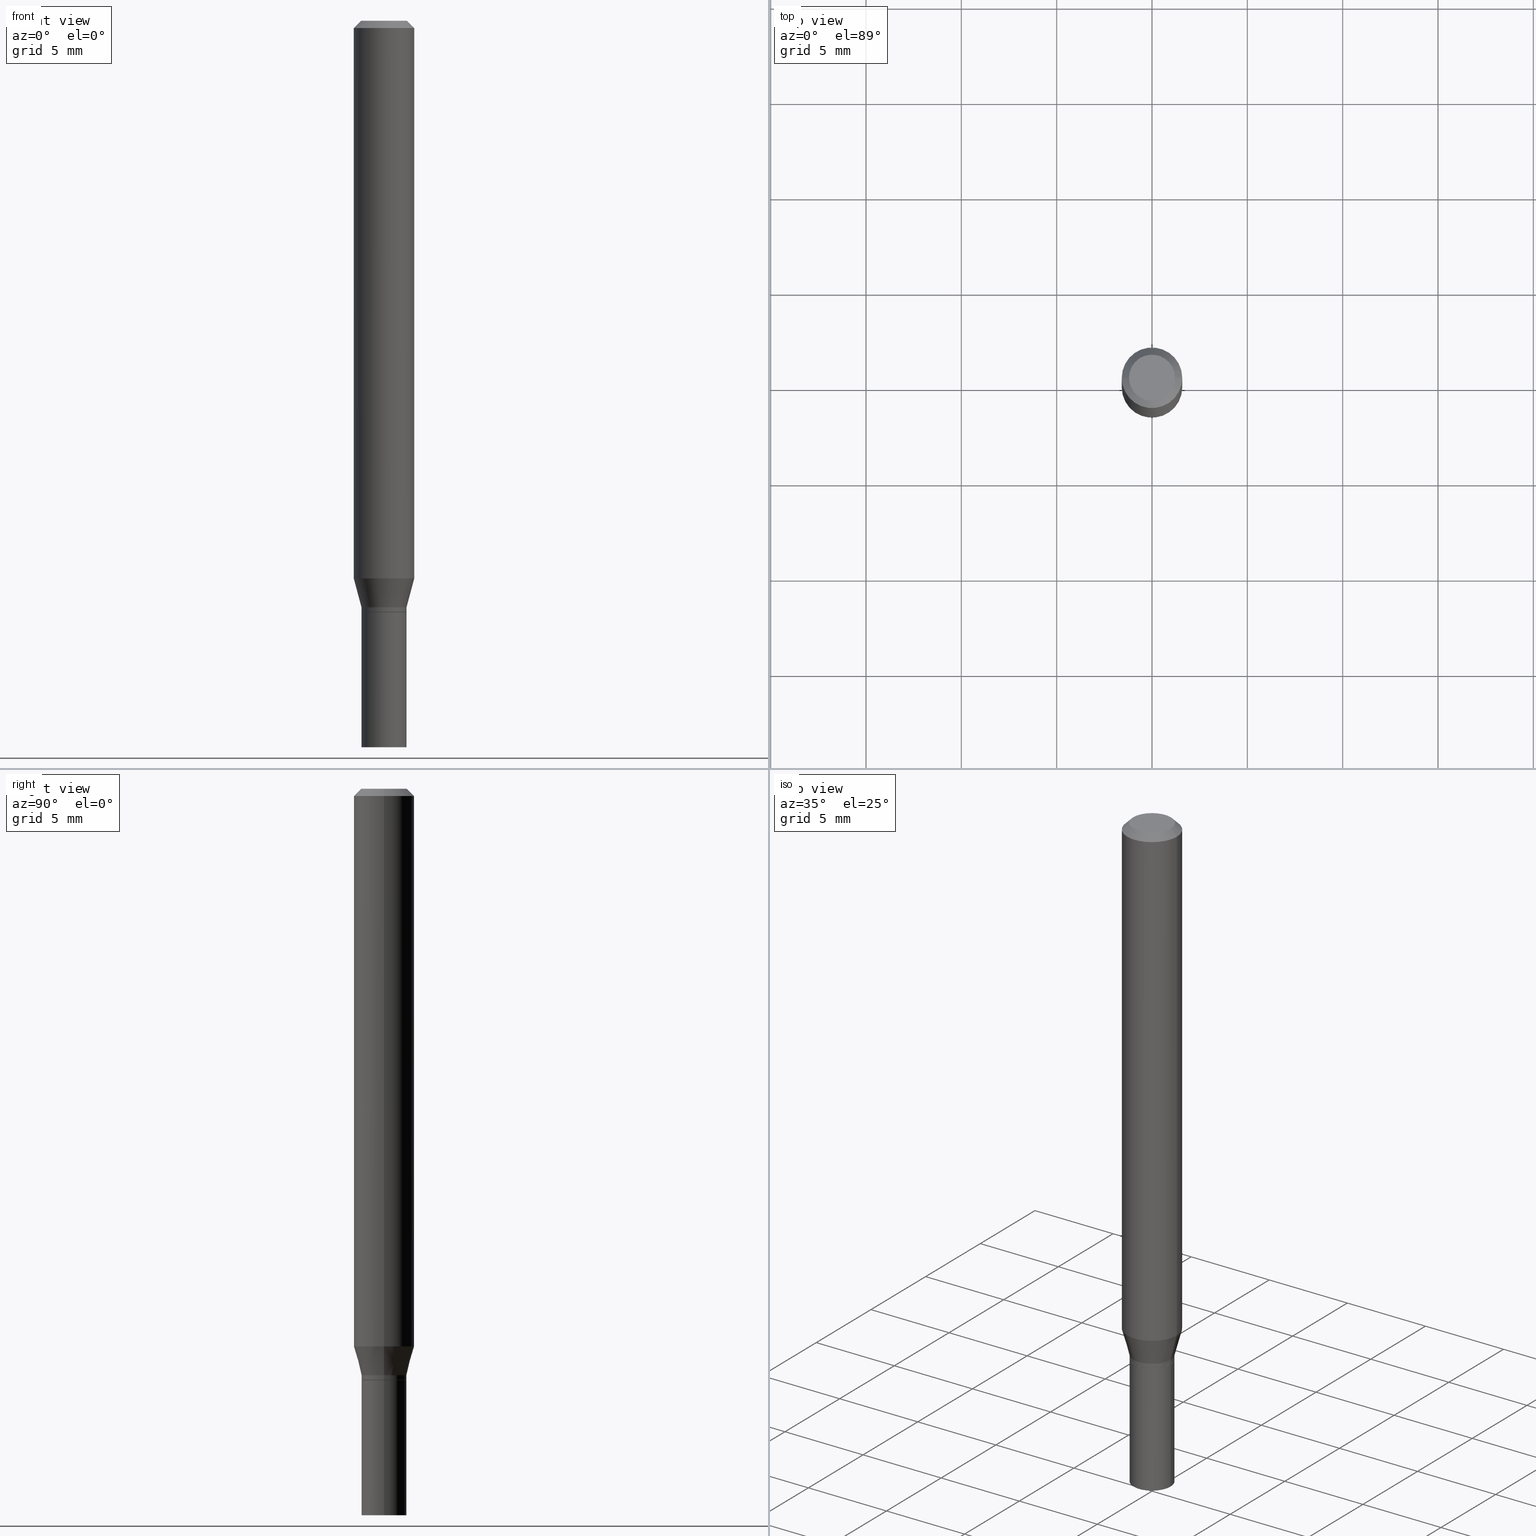
[diagram: canonical four-view strip — front | top / right | iso, engineering-drawing reading convention]
A machine part, canonical four-view strip (front | top / right | iso — engineering-drawing reading convention). The complete STEP part file that produces these views, byte-faithful:
ISO-10303-21;
HEADER;
FILE_DESCRIPTION (( 'STEP AP203' ),
    '1' );
FILE_NAME ('02497.STEP',
    '2024-03-18T20:58:14',
    ( '' ),
    ( '' ),
    'SwSTEP 2.0',
    'SolidWorks 2023',
    '' );
FILE_SCHEMA (( 'CONFIG_CONTROL_DESIGN' ));
ENDSEC;

DATA;
#1 = PLANE ( 'NONE',  #279 ) ;
#2 = ORIENTED_EDGE ( 'NONE', *, *, #188, .T. ) ;
#3 = CONICAL_SURFACE ( 'NONE', #394, 0.04650000000000006906, 0.2617993877991495744 ) ;
#4 = VECTOR ( 'NONE', #295, 39.37007874015748143 ) ;
#5 = CARTESIAN_POINT ( 'NONE',  ( -0.04650000000000006906, -3.736695024347865517E-15, -1.211000000000000076 ) ) ;
#6 = DIRECTION ( 'NONE',  ( -2.445468806185136877E-29, 3.491481338843145188E-15, 1.000000000000000000 ) ) ;
#7 = CARTESIAN_POINT ( 'NONE',  ( -0.06250000000000000000, -1.591945764858856353E-15, -0.01499999999999999944 ) ) ;
#8 = COORDINATED_UNIVERSAL_TIME_OFFSET ( 5, 0, .BEHIND. ) ;
#9 = ORIENTED_EDGE ( 'NONE', *, *, #176, .T. ) ;
#10 = CARTESIAN_POINT ( 'NONE',  ( 0.000000000000000000, 0.000000000000000000, 0.000000000000000000 ) ) ;
#11 = AXIS2_PLACEMENT_3D ( 'NONE', #354, #236, #447 ) ;
#12 = CALENDAR_DATE ( 2024, 18, 3 ) ;
#13 = VERTEX_POINT ( 'NONE', #334 ) ;
#14 = DIRECTION ( 'NONE',  ( 1.000000000000000000, -6.982962677686259611E-15, 0.000000000000000000 ) ) ;
#15 =( NAMED_UNIT ( * ) PLANE_ANGLE_UNIT ( ) SI_UNIT ( $, .RADIAN. ) );
#16 = DATE_AND_TIME ( #132, #322 ) ;
#17 = DIRECTION ( 'NONE',  ( -2.445468806185136597E-29, 3.491481338843145583E-15, 1.000000000000000000 ) ) ;
#18 = CALENDAR_DATE ( 2024, 18, 3 ) ;
#19 = ORIENTED_EDGE ( 'NONE', *, *, #27, .F. ) ;
#20 = APPROVAL ( #79, 'UNSPECIFIED' ) ;
#21 = DIMENSIONAL_EXPONENTS ( 1.000000000000000000, 0.000000000000000000, 0.000000000000000000, 0.000000000000000000, 0.000000000000000000, 0.000000000000000000, 0.000000000000000000 ) ;
#22 = VECTOR ( 'NONE', #282, 39.37007874015748143 ) ;
#23 = PRODUCT_DEFINITION_FORMATION_WITH_SPECIFIED_SOURCE ( 'ANY', '', #335, .NOT_KNOWN. ) ;
#24 = SECURITY_CLASSIFICATION_LEVEL ( 'unclassified' ) ;
#25 = VERTEX_POINT ( 'NONE', #5 ) ;
#26 = DIRECTION ( 'NONE',  ( -2.445468806185136597E-29, 3.491481338843145583E-15, 1.000000000000000000 ) ) ;
#27 = EDGE_CURVE ( 'NONE', #308, #368, #357, .T. ) ;
#28 = MECHANICAL_CONTEXT ( 'NONE', #287, 'mechanical' ) ;
#29 = VECTOR ( 'NONE', #47, 39.37007874015748143 ) ;
#30 = AXIS2_PLACEMENT_3D ( 'NONE', #115, #270, #404 ) ;
#31 = LINE ( 'NONE', #344, #29 ) ;
#32 = PRODUCT_DEFINITION ( 'UNKNOWN', '', #23, #431 ) ;
#33 = CIRCLE ( 'NONE', #291, 0.06250000000000000000 ) ;
#34 = ORIENTED_EDGE ( 'NONE', *, *, #78, .F. ) ;
#35 = CARTESIAN_POINT ( 'NONE',  ( 2.985917412352052273E-29, -4.263098714727481320E-15, -1.221000000000000085 ) ) ;
#36 = CARTESIAN_POINT ( 'NONE',  ( 3.668203209277705088E-31, -5.237222008264718399E-17, -0.01499999999999999944 ) ) ;
#37 = CARTESIAN_POINT ( 'NONE',  ( 0.000000000000000000, 0.000000000000000000, 0.000000000000000000 ) ) ;
#38 = AXIS2_PLACEMENT_3D ( 'NONE', #454, #158, #339 ) ;
#39 = ORIENTED_EDGE ( 'NONE', *, *, #222, .F. ) ;
#40 = EDGE_CURVE ( 'NONE', #25, #374, #413, .T. ) ;
#41 = CIRCLE ( 'NONE', #440, 0.04599999999999999922 ) ;
#42 = DIRECTION ( 'NONE',  ( -2.445468806185136877E-29, 3.491481338843145188E-15, 1.000000000000000000 ) ) ;
#43 = CC_DESIGN_DATE_AND_TIME_ASSIGNMENT ( #345, #199, ( #390 ) ) ;
#44 = CARTESIAN_POINT ( 'NONE',  ( 0.06250000000000000000, -4.456132896690582134E-15, -1.151287187078898322 ) ) ;
#45 = COORDINATED_UNIVERSAL_TIME_OFFSET ( 5, 0, .BEHIND. ) ;
#46 = EDGE_LOOP ( 'NONE', ( #106, #274, #411, #184 ) ) ;
#47 = DIRECTION ( 'NONE',  ( -2.445468806185136877E-29, 3.491481338843145188E-15, 1.000000000000000000 ) ) ;
#48 = CIRCLE ( 'NONE', #88, 0.04749999999999999362 ) ;
#49 = LOCAL_TIME ( 16, 58, 14.00000000000000000, #45 ) ;
#50 = PERSON_AND_ORGANIZATION_ROLE ( 'creator' ) ;
#51 = ORIENTED_EDGE ( 'NONE', *, *, #183, .F. ) ;
#52 = ADVANCED_FACE ( 'NONE', ( #269 ), #352, .T. ) ;
#53 = EDGE_LOOP ( 'NONE', ( #34, #187, #343, #313 ) ) ;
#54 = DIRECTION ( 'NONE',  ( 1.000000000000000000, -6.982962677686267499E-15, 4.884662768193073002E-29 ) ) ;
#55 = APPROVAL_DATE_TIME ( #16, #328 ) ;
#56 = CALENDAR_DATE ( 2024, 18, 3 ) ;
#57 = ORIENTED_EDGE ( 'NONE', *, *, #62, .T. ) ;
#58 = CARTESIAN_POINT ( 'NONE',  ( -2.121106073929386760E-45, 3.028377322213383622E-31, 8.673617379884936499E-17 ) ) ;
#59 = EDGE_CURVE ( 'NONE', #298, #13, #359, .T. ) ;
#60 = MANIFOLD_SOLID_BREP ( 'Body-Move/Copy2[1]', #127 ) ;
#61 = ADVANCED_FACE ( 'NONE', ( #331 ), #3, .T. ) ;
#62 = EDGE_CURVE ( 'NONE', #235, #67, #154, .T. ) ;
#63 = FACE_OUTER_BOUND ( 'NONE', #314, .T. ) ;
#64 = CARTESIAN_POINT ( 'NONE',  ( -0.04650000000000006906, 3.304023721284470771E-16, -2.287304816968534683E-30 ) ) ;
#65 = ORIENTED_EDGE ( 'NONE', *, *, #258, .T. ) ;
#66 = AXIS2_PLACEMENT_3D ( 'NONE', #201, #26, #95 ) ;
#67 = VERTEX_POINT ( 'NONE', #198 ) ;
#68 = AXIS2_PLACEMENT_3D ( 'NONE', #130, #248, #92 ) ;
#69 = LENGTH_MEASURE_WITH_UNIT ( LENGTH_MEASURE( 0.02539999999999999897 ), #102 );
#70 = DIRECTION ( 'NONE',  ( -2.445468806185136597E-29, 3.491481338843145583E-15, 1.000000000000000000 ) ) ;
#71 = CARTESIAN_POINT ( 'NONE',  ( 0.06250000000000000000, -4.364351673553916694E-16, 3.047610484872459871E-30 ) ) ;
#72 = CARTESIAN_POINT ( 'NONE',  ( 2.984694677948959472E-29, -4.261352974058059816E-15, -1.220500000000000140 ) ) ;
#73 = EDGE_CURVE ( 'NONE', #228, #298, #412, .T. ) ;
#74 = CARTESIAN_POINT ( 'NONE',  ( -0.04599999999999999922, -3.933599829103724532E-15, -1.221000000000000085 ) ) ;
#75 = CIRCLE ( 'NONE', #284, 0.04649999999999999967 ) ;
#76 = ORGANIZATION ( 'UNSPECIFIED', 'UNSPECIFIED', '' ) ;
#77 = DIRECTION ( 'NONE',  ( 1.000000000000000000, -6.982962677686260400E-15, 0.000000000000000000 ) ) ;
#78 = EDGE_CURVE ( 'NONE', #386, #305, #373, .T. ) ;
#79 = APPROVAL_STATUS ( 'not_yet_approved' ) ;
#80 = EDGE_LOOP ( 'NONE', ( #445, #362 ) ) ;
#81 = DIRECTION ( 'NONE',  ( 1.000000000000000000, -6.982962677686260400E-15, 0.000000000000000000 ) ) ;
#82 = DIRECTION ( 'NONE',  ( -2.445468806185136597E-29, 3.491481338843145583E-15, 1.000000000000000000 ) ) ;
#83 = ORIENTED_EDGE ( 'NONE', *, *, #131, .T. ) ;
#84 = CARTESIAN_POINT ( 'NONE',  ( -2.121106073929386760E-45, 3.028377322213383622E-31, 8.673617379884936499E-17 ) ) ;
#85 = DIRECTION ( 'NONE',  ( 1.000000000000000000, -6.982962677686260400E-15, 0.000000000000000000 ) ) ;
#86 = EDGE_LOOP ( 'NONE', ( #272, #381 ) ) ;
#87 = CARTESIAN_POINT ( 'NONE',  ( 0.06250000000000000000, -4.811533449433679005E-16, -0.01499999999999999944 ) ) ;
#88 = AXIS2_PLACEMENT_3D ( 'NONE', #58, #250, #54 ) ;
#89 = CIRCLE ( 'NONE', #429, 0.06250000000000000000 ) ;
#90 = CYLINDRICAL_SURFACE ( 'NONE', #66, 0.06250000000000000000 ) ;
#91 = DIRECTION ( 'NONE',  ( 1.000000000000000000, -6.982962677686266711E-15, 0.000000000000000000 ) ) ;
#92 = DIRECTION ( 'NONE',  ( 1.000000000000000000, 0.000000000000000000, 0.000000000000000000 ) ) ;
#93 = CIRCLE ( 'NONE', #401, 0.04649999999999999967 ) ;
#94 = ORIENTED_EDGE ( 'NONE', *, *, #40, .F. ) ;
#95 = DIRECTION ( 'NONE',  ( 1.000000000000000000, -6.982962677686266711E-15, 4.876176775795935793E-29 ) ) ;
#96 = CARTESIAN_POINT ( 'NONE',  ( 2.985917412352052273E-29, -4.263098714727481320E-15, -1.221000000000000085 ) ) ;
#97 = CC_DESIGN_PERSON_AND_ORGANIZATION_ASSIGNMENT ( #169, #283, ( #335 ) ) ;
#98 = LINE ( 'NONE', #214, #326 ) ;
#99 = ORIENTED_EDGE ( 'NONE', *, *, #138, .F. ) ;
#100 = DIRECTION ( 'NONE',  ( 1.000000000000000000, -6.982962677686269866E-15, 0.000000000000000000 ) ) ;
#101 = ADVANCED_FACE ( 'NONE', ( #240 ), #194, .F. ) ;
#102 =( LENGTH_UNIT ( ) NAMED_UNIT ( * ) SI_UNIT ( $, .METRE. ) );
#103 = DIRECTION ( 'NONE',  ( -2.445468806185136877E-29, 3.491481338843145188E-15, 1.000000000000000000 ) ) ;
#104 = CARTESIAN_POINT ( 'NONE',  ( 3.668203209277704895E-29, -5.237222008264718177E-15, -1.500000000000000222 ) ) ;
#105 = CC_DESIGN_APPROVAL ( #243, ( #23 ) ) ;
#106 = ORIENTED_EDGE ( 'NONE', *, *, #73, .F. ) ;
#107 = VECTOR ( 'NONE', #103, 39.37007874015748143 ) ;
#108 = CARTESIAN_POINT ( 'NONE',  ( -0.04650000000000006212, -3.930950601929612542E-15, -1.220500000000000140 ) ) ;
#109 = CARTESIAN_POINT ( 'NONE',  ( 0.04650000000000006906, -3.247077645124118911E-16, 2.267422200745113479E-30 ) ) ;
#110 = EDGE_LOOP ( 'NONE', ( #379, #163, #168, #180 ) ) ;
#111 = EDGE_CURVE ( 'NONE', #416, #228, #33, .T. ) ;
#112 = DIRECTION ( 'NONE',  ( -2.445468806185136597E-29, 3.491481338843145583E-15, 1.000000000000000000 ) ) ;
#113 = COORDINATED_UNIVERSAL_TIME_OFFSET ( 5, 0, .BEHIND. ) ;
#114 = DIRECTION ( 'NONE',  ( 1.000000000000000000, -6.982962677686259611E-15, 0.000000000000000000 ) ) ;
#115 = CARTESIAN_POINT ( 'NONE',  ( 2.985917412352052273E-29, -4.263098714727481320E-15, -1.221000000000000085 ) ) ;
#116 = AXIS2_PLACEMENT_3D ( 'NONE', #323, #459, #288 ) ;
#117 = FACE_OUTER_BOUND ( 'NONE', #191, .T. ) ;
#118 = PERSON ( 'UNSPECIFIED', 'UNSPECIFIED', 'UNSPECIFIED', ('UNSPECIFIED'), ('UNSPECIFIED'), ('UNSPECIFIED') ) ;
#119 = DATE_AND_TIME ( #304, #146 ) ;
#120 = ORIENTED_EDGE ( 'NONE', *, *, #356, .F. ) ;
#121 = ORIENTED_EDGE ( 'NONE', *, *, #303, .F. ) ;
#122 = DIRECTION ( 'NONE',  ( -2.438088387897960049E-29, 3.491481338843145188E-15, 1.000000000000000000 ) ) ;
#123 = DIRECTION ( 'NONE',  ( -2.445468806185136597E-29, 3.491481338843145583E-15, 1.000000000000000000 ) ) ;
#124 = CARTESIAN_POINT ( 'NONE',  ( -0.04650000000000006906, -3.897781529210601608E-15, -1.211000000000000076 ) ) ;
#125 = ORIENTED_EDGE ( 'NONE', *, *, #303, .T. ) ;
#126 = ORIENTED_EDGE ( 'NONE', *, *, #457, .F. ) ;
#127 = CLOSED_SHELL ( 'NONE', ( #461, #211, #247, #101 ) ) ;
#128 = CC_DESIGN_APPROVAL ( #20, ( #32 ) ) ;
#129 = DIRECTION ( 'NONE',  ( -0.7071067811865656694, 7.493145998870420424E-15, 0.7071067811865294761 ) ) ;
#130 = CARTESIAN_POINT ( 'NONE',  ( 0.000000000000000000, 0.000000000000000000, 0.000000000000000000 ) ) ;
#131 = EDGE_CURVE ( 'NONE', #13, #298, #218, .T. ) ;
#132 = CALENDAR_DATE ( 2024, 18, 3 ) ;
#133 = DIRECTION ( 'NONE',  ( -2.445468806185136597E-29, 3.491481338843145583E-15, 1.000000000000000000 ) ) ;
#134 = EDGE_LOOP ( 'NONE', ( #152, #402, #438, #94 ) ) ;
#135 = APPLICATION_PROTOCOL_DEFINITION ( 'international standard', 'config_control_design', 1994, #287 ) ;
#136 = ADVANCED_FACE ( 'NONE', ( #249 ), #462, .T. ) ;
#137 = AXIS2_PLACEMENT_3D ( 'NONE', #273, #178, #330 ) ;
#138 = EDGE_CURVE ( 'NONE', #410, #305, #259, .T. ) ;
#139 = ORIENTED_EDGE ( 'NONE', *, *, #40, .T. ) ;
#140 = DIRECTION ( 'NONE',  ( -2.445468806185136597E-29, 3.491481338843145583E-15, 1.000000000000000000 ) ) ;
#141 = AXIS2_PLACEMENT_3D ( 'NONE', #173, #325, #460 ) ;
#142 = ADVANCED_FACE ( 'NONE', ( #206 ), #380, .F. ) ;
#143 = LINE ( 'NONE', #64, #107 ) ;
#144 = ORIENTED_EDGE ( 'NONE', *, *, #452, .T. ) ;
#145 = LINE ( 'NONE', #225, #209 ) ;
#146 = LOCAL_TIME ( 16, 58, 14.00000000000000000, #316 ) ;
#147 = ORIENTED_EDGE ( 'NONE', *, *, #251, .T. ) ;
#148 = ADVANCED_FACE ( 'NONE', ( #449 ), #90, .T. ) ;
#149 = EDGE_CURVE ( 'NONE', #67, #368, #98, .T. ) ;
#150 = ORIENTED_EDGE ( 'NONE', *, *, #281, .F. ) ;
#151 = ADVANCED_FACE ( 'NONE', ( #207 ), #387, .T. ) ;
#152 = ORIENTED_EDGE ( 'NONE', *, *, #251, .F. ) ;
#153 = DIRECTION ( 'NONE',  ( -2.445468806185136597E-29, 3.491481338843145583E-15, 1.000000000000000000 ) ) ;
#154 = CIRCLE ( 'NONE', #38, 0.04649999999999999967 ) ;
#155 = CARTESIAN_POINT ( 'NONE',  ( 3.247077645124412269E-16, 0.04649999999999573919, -1.221000000000000307 ) ) ;
#156 = ORIENTED_EDGE ( 'NONE', *, *, #138, .T. ) ;
#157 = PLANE ( 'NONE',  #226 ) ;
#158 = DIRECTION ( 'NONE',  ( -2.445468806185136597E-29, 3.491481338843145583E-15, 1.000000000000000000 ) ) ;
#159 = APPROVAL_ROLE ( '' ) ;
#160 = EDGE_LOOP ( 'NONE', ( #261, #351, #99, #245 ) ) ;
#161 = DIRECTION ( 'NONE',  ( 1.000000000000000000, -6.982962677686269866E-15, 0.000000000000000000 ) ) ;
#162 = PERSON_AND_ORGANIZATION_ROLE ( 'classification_officer' ) ;
#163 = ORIENTED_EDGE ( 'NONE', *, *, #183, .T. ) ;
#164 = AXIS2_PLACEMENT_3D ( 'NONE', #231, #369, #189 ) ;
#165 = AXIS2_PLACEMENT_3D ( 'NONE', #10, #153, #307 ) ;
#166 = CARTESIAN_POINT ( 'NONE',  ( -0.06250000000000000000, 4.440892098500626162E-16, -3.074334431409316114E-30 ) ) ;
#167 = DATE_TIME_ROLE ( 'creation_date' ) ;
#168 = ORIENTED_EDGE ( 'NONE', *, *, #172, .F. ) ;
#169 = PERSON_AND_ORGANIZATION ( #118, #76 ) ;
#170 = CLOSED_SHELL ( 'NONE', ( #262, #136, #365, #151, #242, #61, #148, #52, #142, #464, #217, #233 ) ) ;
#171 = CARTESIAN_POINT ( 'NONE',  ( 0.04649999999999999967, -4.587806479239892817E-15, -1.221000000000000085 ) ) ;
#172 = EDGE_CURVE ( 'NONE', #368, #308, #75, .T. ) ;
#173 = CARTESIAN_POINT ( 'NONE',  ( 0.000000000000000000, 0.000000000000000000, 0.000000000000000000 ) ) ;
#174 = EDGE_LOOP ( 'NONE', ( #9, #182 ) ) ;
#175 = APPROVAL_PERSON_ORGANIZATION ( #319, #328, #415 ) ;
#176 = EDGE_CURVE ( 'NONE', #179, #265, #48, .T. ) ;
#177 = FACE_OUTER_BOUND ( 'NONE', #333, .T. ) ;
#178 = DIRECTION ( 'NONE',  ( -2.445468806185136597E-29, 3.491481338843145583E-15, 1.000000000000000000 ) ) ;
#179 = VERTEX_POINT ( 'NONE', #358 ) ;
#180 = ORIENTED_EDGE ( 'NONE', *, *, #149, .F. ) ;
#181 = DIRECTION ( 'NONE',  ( 1.000000000000000000, -6.982962677686267499E-15, 4.876176775795936353E-29 ) ) ;
#182 = ORIENTED_EDGE ( 'NONE', *, *, #222, .T. ) ;
#183 = EDGE_CURVE ( 'NONE', #235, #308, #31, .T. ) ;
#184 = ORIENTED_EDGE ( 'NONE', *, *, #59, .F. ) ;
#185 = DIRECTION ( 'NONE',  ( -2.445468806185136597E-29, 3.491481338843145583E-15, 1.000000000000000000 ) ) ;
#186 = CONICAL_SURFACE ( 'NONE', #137, 0.04650000000000006906, 0.2617993877991495744 ) ;
#187 = ORIENTED_EDGE ( 'NONE', *, *, #383, .T. ) ;
#188 = EDGE_CURVE ( 'NONE', #265, #13, #275, .T. ) ;
#189 = DIRECTION ( 'NONE',  ( 1.000000000000000000, -6.982962677686266711E-15, 0.000000000000000000 ) ) ;
#190 = FACE_OUTER_BOUND ( 'NONE', #134, .T. ) ;
#191 = EDGE_LOOP ( 'NONE', ( #448, #144, #195, #301 ) ) ;
#192 = VECTOR ( 'NONE', #129, 39.37007874015748143 ) ;
#193 = APPROVAL_PERSON_ORGANIZATION ( #254, #20, #244 ) ;
#194 = PLANE ( 'NONE',  #204 ) ;
#195 = ORIENTED_EDGE ( 'NONE', *, *, #111, .F. ) ;
#196 = FACE_OUTER_BOUND ( 'NONE', #53, .T. ) ;
#197 = DIRECTION ( 'NONE',  ( -0.2588190451025209060, 5.211531920934547097E-15, 0.9659258262890682012 ) ) ;
#198 = CARTESIAN_POINT ( 'NONE',  ( 0.04649999999999999967, -5.561929772777129673E-15, -1.500000000000000222 ) ) ;
#199 = DATE_TIME_ROLE ( 'classification_date' ) ;
#200 = EDGE_LOOP ( 'NONE', ( #51, #57, #203, #19 ) ) ;
#201 = CARTESIAN_POINT ( 'NONE',  ( 0.000000000000000000, 0.000000000000000000, 0.000000000000000000 ) ) ;
#202 = APPROVAL_DATE_TIME ( #451, #243 ) ;
#203 = ORIENTED_EDGE ( 'NONE', *, *, #149, .T. ) ;
#204 = AXIS2_PLACEMENT_3D ( 'NONE', #155, #442, #280 ) ;
#205 = VECTOR ( 'NONE', #208, 39.37007874015748143 ) ;
#206 = FACE_OUTER_BOUND ( 'NONE', #174, .T. ) ;
#207 = FACE_OUTER_BOUND ( 'NONE', #444, .T. ) ;
#208 = DIRECTION ( 'NONE',  ( 0.7071067811865656694, -2.468850131082446387E-15, 0.7071067811865294761 ) ) ;
#209 = VECTOR ( 'NONE', #267, 39.37007874015748854 ) ;
#210 = CARTESIAN_POINT ( 'NONE',  ( 0.04599999999999999922, -4.584314997901049810E-15, -1.221000000000000085 ) ) ;
#211 = ADVANCED_FACE ( 'NONE', ( #239 ), #157, .F. ) ;
#212 = CYLINDRICAL_SURFACE ( 'NONE', #268, 0.04650000000000006906 ) ;
#213 = ORIENTED_EDGE ( 'NONE', *, *, #391, .F. ) ;
#214 = CARTESIAN_POINT ( 'NONE',  ( 0.04649999999999999967, -3.247077645124114474E-16, 2.267422200745110326E-30 ) ) ;
#215 = DIRECTION ( 'NONE',  ( -2.445468806185136597E-29, 3.491481338843145583E-15, 1.000000000000000000 ) ) ;
#216 = UNCERTAINTY_MEASURE_WITH_UNIT (LENGTH_MEASURE( 1.000000000000000082E-05 ), #393, 'distance_accuracy_value', 'NONE');
#217 = ADVANCED_FACE ( 'NONE', ( #196 ), #463, .T. ) ;
#218 = CIRCLE ( 'NONE', #278, 0.06250000000000000000 ) ;
#219 = AXIS2_PLACEMENT_3D ( 'NONE', #72, #112, #77 ) ;
#220 = DIRECTION ( 'NONE',  ( -2.445468806185136597E-29, 3.491481338843145583E-15, 1.000000000000000000 ) ) ;
#221 = DIRECTION ( 'NONE',  ( 1.000000000000000000, -6.982962677686260400E-15, 0.000000000000000000 ) ) ;
#222 = EDGE_CURVE ( 'NONE', #265, #179, #299, .T. ) ;
#223 = MANIFOLD_SOLID_BREP ( 'Body-Move/Copy2[2]', #170 ) ;
#224 = CARTESIAN_POINT ( 'NONE',  ( 2.961462724290200728E-29, -4.228183901339049671E-15, -1.211000000000000076 ) ) ;
#225 = CARTESIAN_POINT ( 'NONE',  ( -0.06250000000000000000, 3.840629472727444916E-16, -0.01499999999999999944 ) ) ;
#226 = AXIS2_PLACEMENT_3D ( 'NONE', #310, #122, #376 ) ;
#227 = VECTOR ( 'NONE', #197, 39.37007874015748143 ) ;
#228 = VERTEX_POINT ( 'NONE', #370 ) ;
#229 = SHAPE_DEFINITION_REPRESENTATION ( #400, #418 ) ;
#230 = ORIENTED_EDGE ( 'NONE', *, *, #131, .F. ) ;
#231 = CARTESIAN_POINT ( 'NONE',  ( 3.668203209277705088E-31, -5.237222008264718399E-17, -0.01499999999999999944 ) ) ;
#232 = DIRECTION ( 'NONE',  ( 1.000000000000000000, -6.982962677686267499E-15, 4.884662768193073002E-29 ) ) ;
#233 = ADVANCED_FACE ( 'NONE', ( #190 ), #338, .T. ) ;
#234 = PERSON_AND_ORGANIZATION ( #118, #76 ) ;
#235 = VERTEX_POINT ( 'NONE', #441 ) ;
#236 = DIRECTION ( 'NONE',  ( 2.438088387897960049E-29, -3.491481338843145188E-15, -1.000000000000000000 ) ) ;
#237 = PERSON_AND_ORGANIZATION_ROLE ( 'design_supplier' ) ;
#238 = ORIENTED_EDGE ( 'NONE', *, *, #371, .F. ) ;
#239 = FACE_OUTER_BOUND ( 'NONE', #86, .T. ) ;
#240 = FACE_OUTER_BOUND ( 'NONE', #80, .T. ) ;
#241 = APPROVAL_DATE_TIME ( #119, #20 ) ;
#242 = ADVANCED_FACE ( 'NONE', ( #117 ), #186, .T. ) ;
#243 = APPROVAL ( #409, 'UNSPECIFIED' ) ;
#244 = APPROVAL_ROLE ( '' ) ;
#245 = ORIENTED_EDGE ( 'NONE', *, *, #318, .F. ) ;
#246 = ORIENTED_EDGE ( 'NONE', *, *, #176, .F. ) ;
#247 = ADVANCED_FACE ( 'NONE', ( #332 ), #466, .T. ) ;
#248 = DIRECTION ( 'NONE',  ( 0.000000000000000000, 0.000000000000000000, 1.000000000000000000 ) ) ;
#249 = FACE_OUTER_BOUND ( 'NONE', #160, .T. ) ;
#250 = DIRECTION ( 'NONE',  ( -2.445468806185136597E-29, 3.491481338843145583E-15, 1.000000000000000000 ) ) ;
#251 = EDGE_CURVE ( 'NONE', #305, #25, #143, .T. ) ;
#252 = CARTESIAN_POINT ( 'NONE',  ( 2.984694677948959472E-29, -4.261352974058059816E-15, -1.220500000000000140 ) ) ;
#253 = PRODUCT_RELATED_PRODUCT_CATEGORY ( 'detail', '', ( #335 ) ) ;
#254 = PERSON_AND_ORGANIZATION ( #118, #76 ) ;
#255 = CONICAL_SURFACE ( 'NONE', #375, 0.06250000000000000000, 0.7853981633974456145 ) ;
#256 = CARTESIAN_POINT ( 'NONE',  ( 3.668203209277705088E-31, -5.237222008264718399E-17, -0.01499999999999999944 ) ) ;
#257 = DIRECTION ( 'NONE',  ( 1.000000000000000000, -6.982962677686266711E-15, 4.876176775795935793E-29 ) ) ;
#258 = EDGE_CURVE ( 'NONE', #374, #416, #293, .T. ) ;
#259 = CIRCLE ( 'NONE', #428, 0.04650000000000006212 ) ;
#260 = LOCAL_TIME ( 16, 58, 14.00000000000000000, #8 ) ;
#261 = ORIENTED_EDGE ( 'NONE', *, *, #356, .T. ) ;
#262 = ADVANCED_FACE ( 'NONE', ( #434 ), #212, .T. ) ;
#263 = CARTESIAN_POINT ( 'NONE',  ( -0.04649999999999999967, -4.419757989367653263E-15, -1.221000000000000085 ) ) ;
#264 = ORIENTED_EDGE ( 'NONE', *, *, #59, .T. ) ;
#265 = VERTEX_POINT ( 'NONE', #432 ) ;
#266 = DIRECTION ( 'NONE',  ( 1.000000000000000000, -6.982962677686269866E-15, 0.000000000000000000 ) ) ;
#267 = DIRECTION ( 'NONE',  ( -0.7071067811865454633, 2.468850131082235761E-15, -0.7071067811865493491 ) ) ;
#268 = AXIS2_PLACEMENT_3D ( 'NONE', #37, #215, #257 ) ;
#269 = FACE_OUTER_BOUND ( 'NONE', #271, .T. ) ;
#270 = DIRECTION ( 'NONE',  ( -2.445468806185136597E-29, 3.491481338843145583E-15, 1.000000000000000000 ) ) ;
#271 = EDGE_LOOP ( 'NONE', ( #337, #246, #125, #264 ) ) ;
#272 = ORIENTED_EDGE ( 'NONE', *, *, #277, .F. ) ;
#273 = CARTESIAN_POINT ( 'NONE',  ( 2.961462724290200728E-29, -4.228183901339049671E-15, -1.211000000000000076 ) ) ;
#274 = ORIENTED_EDGE ( 'NONE', *, *, #281, .T. ) ;
#275 = LINE ( 'NONE', #87, #384 ) ;
#276 = DIRECTION ( 'NONE',  ( 1.000000000000000000, -6.982962677686260400E-15, 0.000000000000000000 ) ) ;
#277 = EDGE_CURVE ( 'NONE', #67, #235, #93, .T. ) ;
#278 = AXIS2_PLACEMENT_3D ( 'NONE', #417, #311, #91 ) ;
#279 = AXIS2_PLACEMENT_3D ( 'NONE', #329, #294, #465 ) ;
#280 = DIRECTION ( 'NONE',  ( -1.000000000000000000, 6.982962677686265922E-15, -4.876176775795935793E-29 ) ) ;
#281 = EDGE_CURVE ( 'NONE', #228, #416, #89, .T. ) ;
#282 = DIRECTION ( 'NONE',  ( -2.445468806185136877E-29, 3.491481338843145188E-15, 1.000000000000000000 ) ) ;
#283 = PERSON_AND_ORGANIZATION_ROLE ( 'design_owner' ) ;
#284 = AXIS2_PLACEMENT_3D ( 'NONE', #320, #315, #276 ) ;
#285 = VECTOR ( 'NONE', #42, 39.37007874015748143 ) ;
#286 = DIRECTION ( 'NONE',  ( 2.445468806185136597E-29, -3.491481338843145583E-15, -1.000000000000000000 ) ) ;
#287 = APPLICATION_CONTEXT ( 'configuration controlled 3d designs of mechanical parts and assemblies' ) ;
#288 = DIRECTION ( 'NONE',  ( 1.000000000000000000, -6.982962677686259611E-15, 0.000000000000000000 ) ) ;
#289 = EDGE_LOOP ( 'NONE', ( #156, #147, #238, #213 ) ) ;
#290 = CC_DESIGN_PERSON_AND_ORGANIZATION_ASSIGNMENT ( #350, #50, ( #23 ) ) ;
#291 = AXIS2_PLACEMENT_3D ( 'NONE', #423, #133, #421 ) ;
#292 = CC_DESIGN_APPROVAL ( #328, ( #390 ) ) ;
#293 = LINE ( 'NONE', #392, #4 ) ;
#294 = DIRECTION ( 'NONE',  ( -2.438088387897960049E-29, 3.491481338843145188E-15, 1.000000000000000000 ) ) ;
#295 = DIRECTION ( 'NONE',  ( 0.2588190451025209060, 1.565188264969625123E-15, 0.9659258262890682012 ) ) ;
#296 = CARTESIAN_POINT ( 'NONE',  ( 0.000000000000000000, 0.000000000000000000, 0.000000000000000000 ) ) ;
#297 = CC_DESIGN_PERSON_AND_ORGANIZATION_ASSIGNMENT ( #378, #162, ( #390 ) ) ;
#298 = VERTEX_POINT ( 'NONE', #7 ) ;
#299 = CIRCLE ( 'NONE', #414, 0.04749999999999999362 ) ;
#300 = AXIS2_PLACEMENT_3D ( 'NONE', #35, #140, #100 ) ;
#301 = ORIENTED_EDGE ( 'NONE', *, *, #258, .F. ) ;
#302 = LINE ( 'NONE', #71, #285 ) ;
#303 = EDGE_CURVE ( 'NONE', #179, #298, #145, .T. ) ;
#304 = CALENDAR_DATE ( 2024, 18, 3 ) ;
#305 = VERTEX_POINT ( 'NONE', #108 ) ;
#306 = DIRECTION ( 'NONE',  ( 2.445468806185136597E-29, -3.491481338843145583E-15, -1.000000000000000000 ) ) ;
#307 = DIRECTION ( 'NONE',  ( 1.000000000000000000, -6.982962677686266711E-15, 4.876176775795935793E-29 ) ) ;
#308 = VERTEX_POINT ( 'NONE', #263 ) ;
#309 = ORIENTED_EDGE ( 'NONE', *, *, #383, .F. ) ;
#310 = CARTESIAN_POINT ( 'NONE',  ( 3.576687321579069994E-29, -5.368277968210015545E-15, -1.500000000000000222 ) ) ;
#311 = DIRECTION ( 'NONE',  ( -2.445468806185136597E-29, 3.491481338843145583E-15, 1.000000000000000000 ) ) ;
#312 = DATE_AND_TIME ( #18, #385 ) ;
#313 = ORIENTED_EDGE ( 'NONE', *, *, #405, .F. ) ;
#314 = EDGE_LOOP ( 'NONE', ( #39, #2, #83, #121 ) ) ;
#315 = DIRECTION ( 'NONE',  ( -2.445468806185136597E-29, 3.491481338843145583E-15, 1.000000000000000000 ) ) ;
#316 = COORDINATED_UNIVERSAL_TIME_OFFSET ( 5, 0, .BEHIND. ) ;
#317 = VECTOR ( 'NONE', #6, 39.37007874015748143 ) ;
#318 = EDGE_CURVE ( 'NONE', #372, #410, #398, .T. ) ;
#319 = PERSON_AND_ORGANIZATION ( #118, #76 ) ;
#320 = CARTESIAN_POINT ( 'NONE',  ( 2.985917412352052273E-29, -4.263098714727481320E-15, -1.221000000000000085 ) ) ;
#321 = CYLINDRICAL_SURFACE ( 'NONE', #141, 0.04649999999999999967 ) ;
#322 = LOCAL_TIME ( 16, 58, 14.00000000000000000, #113 ) ;
#323 = CARTESIAN_POINT ( 'NONE',  ( 2.961462724290200728E-29, -4.228183901339049671E-15, -1.211000000000000076 ) ) ;
#324 = CC_DESIGN_DATE_AND_TIME_ASSIGNMENT ( #312, #167, ( #32 ) ) ;
#325 = DIRECTION ( 'NONE',  ( -2.445468806185136597E-29, 3.491481338843145583E-15, 1.000000000000000000 ) ) ;
#326 = VECTOR ( 'NONE', #455, 39.37007874015748143 ) ;
#327 = CIRCLE ( 'NONE', #300, 0.04599999999999999922 ) ;
#328 = APPROVAL ( #443, 'UNSPECIFIED' ) ;
#329 = CARTESIAN_POINT ( 'NONE',  ( 2.985917412352052273E-29, -4.263098714727481320E-15, -1.221000000000000085 ) ) ;
#330 = DIRECTION ( 'NONE',  ( 1.000000000000000000, -6.982962677686259611E-15, 0.000000000000000000 ) ) ;
#331 = FACE_OUTER_BOUND ( 'NONE', #360, .T. ) ;
#332 = FACE_OUTER_BOUND ( 'NONE', #200, .T. ) ;
#333 = EDGE_LOOP ( 'NONE', ( #120, #309 ) ) ;
#334 = CARTESIAN_POINT ( 'NONE',  ( 0.06250000000000000000, -4.888073874380388472E-16, -0.01499999999999999944 ) ) ;
#335 = PRODUCT ( '02497', '02497', '', ( #28 ) ) ;
#336 = LINE ( 'NONE', #124, #227 ) ;
#337 = ORIENTED_EDGE ( 'NONE', *, *, #188, .F. ) ;
#338 = CYLINDRICAL_SURFACE ( 'NONE', #165, 0.04650000000000006906 ) ;
#339 = DIRECTION ( 'NONE',  ( 1.000000000000000000, -6.982962677686260400E-15, 0.000000000000000000 ) ) ;
#340 = AXIS2_PLACEMENT_3D ( 'NONE', #296, #123, #420 ) ;
#341 = COORDINATED_UNIVERSAL_TIME_OFFSET ( 5, 0, .BEHIND. ) ;
#342 = APPROVAL_PERSON_ORGANIZATION ( #419, #243, #159 ) ;
#343 = ORIENTED_EDGE ( 'NONE', *, *, #318, .T. ) ;
#344 = CARTESIAN_POINT ( 'NONE',  ( -0.04649999999999999967, 3.304023721284465841E-16, -2.287304816968531530E-30 ) ) ;
#345 = DATE_AND_TIME ( #12, #49 ) ;
#346 = CARTESIAN_POINT ( 'NONE',  ( 2.985917412352052273E-29, -4.263098714727481320E-15, -1.221000000000000085 ) ) ;
#347 = APPLICATION_PROTOCOL_DEFINITION ( 'international standard', 'config_control_design', 1994, #396 ) ;
#348 = PERSON_AND_ORGANIZATION_ROLE ( 'creator' ) ;
#349 = ORIENTED_EDGE ( 'NONE', *, *, #452, .F. ) ;
#350 = PERSON_AND_ORGANIZATION ( #118, #76 ) ;
#351 = ORIENTED_EDGE ( 'NONE', *, *, #78, .T. ) ;
#352 = CONICAL_SURFACE ( 'NONE', #433, 0.06250000000000000000, 0.7853981633974456145 ) ;
#353 = CC_DESIGN_SECURITY_CLASSIFICATION ( #390, ( #23 ) ) ;
#354 = CARTESIAN_POINT ( 'NONE',  ( 3.316907271900976096E-16, 0.04749999999999999362, -1.224772766956247324E-16 ) ) ;
#355 = DIRECTION ( 'NONE',  ( -1.000000000000000000, 6.982962677686266711E-15, 0.000000000000000000 ) ) ;
#356 = EDGE_CURVE ( 'NONE', #372, #386, #327, .T. ) ;
#357 = CIRCLE ( 'NONE', #363, 0.04649999999999999967 ) ;
#358 = CARTESIAN_POINT ( 'NONE',  ( -0.04749999999999999362, 3.578768372314211985E-16, 8.673617379884694910E-17 ) ) ;
#359 = CIRCLE ( 'NONE', #164, 0.06250000000000000000 ) ;
#360 = EDGE_LOOP ( 'NONE', ( #349, #139, #65, #150 ) ) ;
#361 = CARTESIAN_POINT ( 'NONE',  ( 2.815436902962077376E-29, -4.019697729335190464E-15, -1.151287187078898322 ) ) ;
#362 = ORIENTED_EDGE ( 'NONE', *, *, #27, .T. ) ;
#363 = AXIS2_PLACEMENT_3D ( 'NONE', #437, #220, #81 ) ;
#364 =( GEOMETRIC_REPRESENTATION_CONTEXT ( 3 ) GLOBAL_UNCERTAINTY_ASSIGNED_CONTEXT ( ( #216 ) ) GLOBAL_UNIT_ASSIGNED_CONTEXT ( ( #393, #15, #377 ) ) REPRESENTATION_CONTEXT ( 'NONE', 'WORKASPACE' ) );
#365 = ADVANCED_FACE ( 'NONE', ( #63 ), #255, .T. ) ;
#366 = DIRECTION ( 'NONE',  ( -2.445468806185136597E-29, 3.491481338843145583E-15, 1.000000000000000000 ) ) ;
#367 = FACE_OUTER_BOUND ( 'NONE', #110, .T. ) ;
#368 = VERTEX_POINT ( 'NONE', #171 ) ;
#369 = DIRECTION ( 'NONE',  ( -2.445468806185136597E-29, 3.491481338843145583E-15, 1.000000000000000000 ) ) ;
#370 = CARTESIAN_POINT ( 'NONE',  ( -0.06250000000000000000, -3.575608519485127848E-15, -1.151287187078898322 ) ) ;
#371 = EDGE_CURVE ( 'NONE', #374, #25, #450, .T. ) ;
#372 = VERTEX_POINT ( 'NONE', #210 ) ;
#373 = LINE ( 'NONE', #453, #192 ) ;
#374 = VERTEX_POINT ( 'NONE', #426 ) ;
#375 = AXIS2_PLACEMENT_3D ( 'NONE', #256, #286, #355 ) ;
#376 = DIRECTION ( 'NONE',  ( 1.000000000000000000, -6.982962677686265922E-15, 4.876176775795935793E-29 ) ) ;
#377 =( NAMED_UNIT ( * ) SI_UNIT ( $, .STERADIAN. ) SOLID_ANGLE_UNIT ( ) );
#378 = PERSON_AND_ORGANIZATION ( #118, #76 ) ;
#379 = ORIENTED_EDGE ( 'NONE', *, *, #277, .T. ) ;
#380 = PLANE ( 'NONE',  #11 ) ;
#381 = ORIENTED_EDGE ( 'NONE', *, *, #62, .F. ) ;
#382 = DIRECTION ( 'NONE',  ( -2.445468806185136597E-29, 3.491481338843145583E-15, 1.000000000000000000 ) ) ;
#383 = EDGE_CURVE ( 'NONE', #386, #372, #41, .T. ) ;
#384 = VECTOR ( 'NONE', #446, 39.37007874015748854 ) ;
#385 = LOCAL_TIME ( 16, 58, 14.00000000000000000, #341 ) ;
#386 = VERTEX_POINT ( 'NONE', #74 ) ;
#387 = CYLINDRICAL_SURFACE ( 'NONE', #340, 0.06250000000000000000 ) ;
#388 = ORIENTED_EDGE ( 'NONE', *, *, #111, .T. ) ;
#389 = DIRECTION ( 'NONE',  ( -2.445468806185136597E-29, 3.491481338843145583E-15, 1.000000000000000000 ) ) ;
#390 = SECURITY_CLASSIFICATION ( '', '', #24 ) ;
#391 = EDGE_CURVE ( 'NONE', #410, #374, #435, .T. ) ;
#392 = CARTESIAN_POINT ( 'NONE',  ( 0.04650000000000006906, -4.552891665851461168E-15, -1.211000000000000076 ) ) ;
#393 =( CONVERSION_BASED_UNIT ( 'INCH', #69 ) LENGTH_UNIT ( ) NAMED_UNIT ( #21 ) );
#394 = AXIS2_PLACEMENT_3D ( 'NONE', #395, #382, #14 ) ;
#395 = CARTESIAN_POINT ( 'NONE',  ( 2.961462724290200728E-29, -4.228183901339049671E-15, -1.211000000000000076 ) ) ;
#396 = APPLICATION_CONTEXT ( 'configuration controlled 3d designs of mechanical parts and assemblies' ) ;
#397 = DIRECTION ( 'NONE',  ( -2.445468806185136597E-29, 3.491481338843145583E-15, 1.000000000000000000 ) ) ;
#398 = LINE ( 'NONE', #436, #205 ) ;
#399 = CC_DESIGN_PERSON_AND_ORGANIZATION_ASSIGNMENT ( #407, #348, ( #32 ) ) ;
#400 = PRODUCT_DEFINITION_SHAPE ( 'NONE', 'NONE',  #32 ) ;
#401 = AXIS2_PLACEMENT_3D ( 'NONE', #104, #70, #221 ) ;
#402 = ORIENTED_EDGE ( 'NONE', *, *, #405, .T. ) ;
#403 = DIRECTION ( 'NONE',  ( -1.000000000000000000, 6.982962677686266711E-15, 0.000000000000000000 ) ) ;
#404 = DIRECTION ( 'NONE',  ( 1.000000000000000000, -6.982962677686269866E-15, 0.000000000000000000 ) ) ;
#405 = EDGE_CURVE ( 'NONE', #305, #410, #456, .T. ) ;
#406 = CARTESIAN_POINT ( 'NONE',  ( 0.04650000000000006212, -4.586060738570472102E-15, -1.220500000000000140 ) ) ;
#407 = PERSON_AND_ORGANIZATION ( #118, #76 ) ;
#408 = DIRECTION ( 'NONE',  ( -2.445468806185136597E-29, 3.491481338843145583E-15, 1.000000000000000000 ) ) ;
#409 = APPROVAL_STATUS ( 'not_yet_approved' ) ;
#410 = VERTEX_POINT ( 'NONE', #406 ) ;
#411 = ORIENTED_EDGE ( 'NONE', *, *, #457, .T. ) ;
#412 = LINE ( 'NONE', #166, #22 ) ;
#413 = CIRCLE ( 'NONE', #439, 0.04650000000000006906 ) ;
#414 = AXIS2_PLACEMENT_3D ( 'NONE', #84, #82, #232 ) ;
#415 = APPROVAL_ROLE ( '' ) ;
#416 = VERTEX_POINT ( 'NONE', #44 ) ;
#417 = CARTESIAN_POINT ( 'NONE',  ( 3.668203209277705088E-31, -5.237222008264718399E-17, -0.01499999999999999944 ) ) ;
#418 = ADVANCED_BREP_SHAPE_REPRESENTATION ( '02497', ( #60, #223, #68 ), #364 ) ;
#419 = PERSON_AND_ORGANIZATION ( #118, #76 ) ;
#420 = DIRECTION ( 'NONE',  ( 1.000000000000000000, -6.982962677686266711E-15, 4.876176775795935793E-29 ) ) ;
#421 = DIRECTION ( 'NONE',  ( 1.000000000000000000, -6.982962677686262766E-15, 0.000000000000000000 ) ) ;
#422 = CC_DESIGN_PERSON_AND_ORGANIZATION_ASSIGNMENT ( #234, #237, ( #23 ) ) ;
#423 = CARTESIAN_POINT ( 'NONE',  ( 2.815436902962077376E-29, -4.019697729335190464E-15, -1.151287187078898322 ) ) ;
#424 = AXIS2_PLACEMENT_3D ( 'NONE', #346, #17, #161 ) ;
#425 = AXIS2_PLACEMENT_3D ( 'NONE', #430, #397, #181 ) ;
#426 = CARTESIAN_POINT ( 'NONE',  ( 0.04650000000000006906, -4.552891665851461168E-15, -1.211000000000000076 ) ) ;
#427 = DIRECTION ( 'NONE',  ( 1.000000000000000000, -6.982962677686262766E-15, 0.000000000000000000 ) ) ;
#428 = AXIS2_PLACEMENT_3D ( 'NONE', #252, #408, #85 ) ;
#429 = AXIS2_PLACEMENT_3D ( 'NONE', #361, #185, #427 ) ;
#430 = CARTESIAN_POINT ( 'NONE',  ( 0.000000000000000000, 0.000000000000000000, 0.000000000000000000 ) ) ;
#431 = DESIGN_CONTEXT ( 'detailed design', #396, 'design' ) ;
#432 = CARTESIAN_POINT ( 'NONE',  ( 0.04749999999999999362, -4.035134999187577144E-16, 8.673617379885194112E-17 ) ) ;
#433 = AXIS2_PLACEMENT_3D ( 'NONE', #36, #306, #403 ) ;
#434 = FACE_OUTER_BOUND ( 'NONE', #289, .T. ) ;
#435 = LINE ( 'NONE', #109, #317 ) ;
#436 = CARTESIAN_POINT ( 'NONE',  ( 0.04599999999999999922, -4.584314997901049810E-15, -1.221000000000000085 ) ) ;
#437 = CARTESIAN_POINT ( 'NONE',  ( 2.985917412352052273E-29, -4.263098714727481320E-15, -1.221000000000000085 ) ) ;
#438 = ORIENTED_EDGE ( 'NONE', *, *, #391, .T. ) ;
#439 = AXIS2_PLACEMENT_3D ( 'NONE', #224, #366, #114 ) ;
#440 = AXIS2_PLACEMENT_3D ( 'NONE', #96, #389, #266 ) ;
#441 = CARTESIAN_POINT ( 'NONE',  ( -0.04649999999999999967, -4.419757989367653263E-15, -1.500000000000000222 ) ) ;
#442 = DIRECTION ( 'NONE',  ( 2.438088387897960049E-29, -3.491481338843145188E-15, -1.000000000000000000 ) ) ;
#443 = APPROVAL_STATUS ( 'not_yet_approved' ) ;
#444 = EDGE_LOOP ( 'NONE', ( #388, #458, #230, #126 ) ) ;
#445 = ORIENTED_EDGE ( 'NONE', *, *, #172, .T. ) ;
#446 = DIRECTION ( 'NONE',  ( 0.7071067811865454633, -7.319954787623246579E-15, -0.7071067811865493491 ) ) ;
#447 = DIRECTION ( 'NONE',  ( -1.000000000000000000, 6.982962677686265922E-15, -4.876176775795935793E-29 ) ) ;
#448 = ORIENTED_EDGE ( 'NONE', *, *, #371, .T. ) ;
#449 = FACE_OUTER_BOUND ( 'NONE', #46, .T. ) ;
#450 = CIRCLE ( 'NONE', #116, 0.04650000000000006906 ) ;
#451 = DATE_AND_TIME ( #56, #260 ) ;
#452 = EDGE_CURVE ( 'NONE', #25, #228, #336, .T. ) ;
#453 = CARTESIAN_POINT ( 'NONE',  ( -0.04599999999999999922, -3.936249056277835733E-15, -1.221000000000000085 ) ) ;
#454 = CARTESIAN_POINT ( 'NONE',  ( 3.668203209277704895E-29, -5.237222008264718177E-15, -1.500000000000000222 ) ) ;
#455 = DIRECTION ( 'NONE',  ( -2.445468806185136877E-29, 3.491481338843145188E-15, 1.000000000000000000 ) ) ;
#456 = CIRCLE ( 'NONE', #219, 0.04650000000000006212 ) ;
#457 = EDGE_CURVE ( 'NONE', #416, #13, #302, .T. ) ;
#458 = ORIENTED_EDGE ( 'NONE', *, *, #73, .T. ) ;
#459 = DIRECTION ( 'NONE',  ( -2.445468806185136597E-29, 3.491481338843145583E-15, 1.000000000000000000 ) ) ;
#460 = DIRECTION ( 'NONE',  ( 1.000000000000000000, -6.982962677686267499E-15, 4.876176775795936353E-29 ) ) ;
#461 = ADVANCED_FACE ( 'NONE', ( #367 ), #321, .T. ) ;
#462 = CONICAL_SURFACE ( 'NONE', #424, 0.04599999999999999922, 0.7853981633974739252 ) ;
#463 = CONICAL_SURFACE ( 'NONE', #30, 0.04599999999999999922, 0.7853981633974739252 ) ;
#464 = ADVANCED_FACE ( 'NONE', ( #177 ), #1, .F. ) ;
#465 = DIRECTION ( 'NONE',  ( 1.000000000000000000, -6.982962677686265922E-15, 4.876176775795935793E-29 ) ) ;
#466 = CYLINDRICAL_SURFACE ( 'NONE', #425, 0.04649999999999999967 ) ;
ENDSEC;
END-ISO-10303-21;
